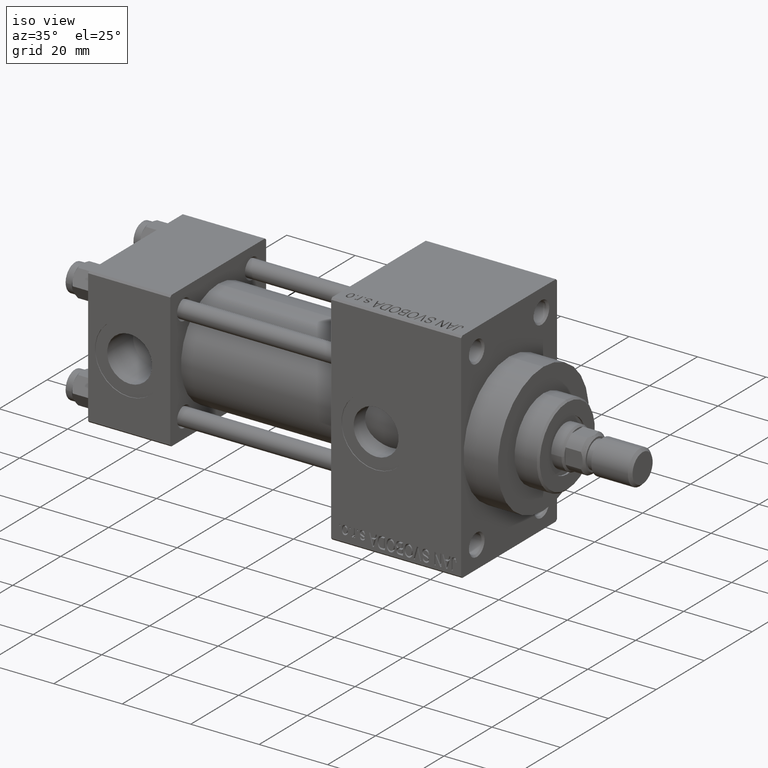
[diagram: clean part render]
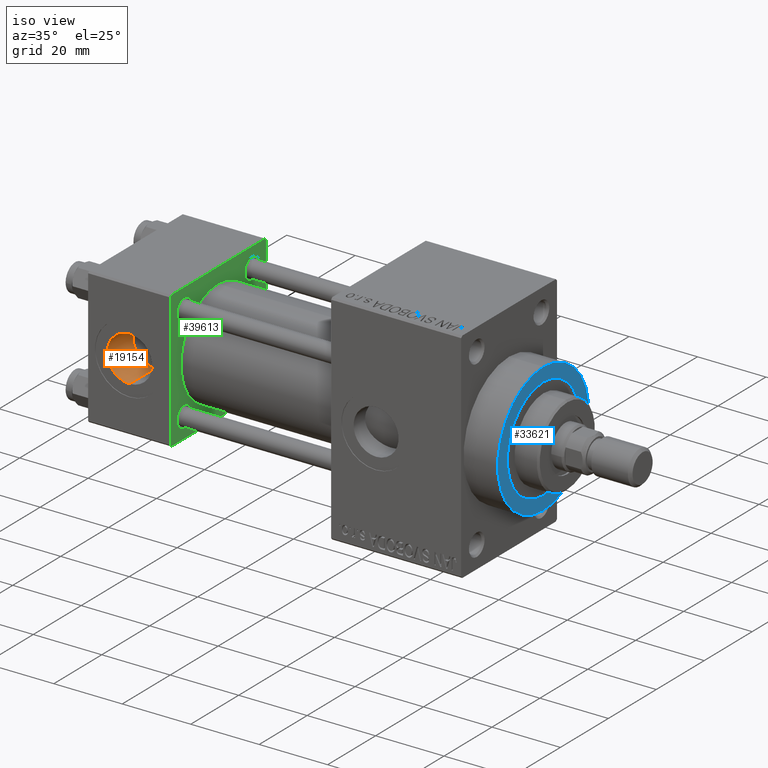
[diagram: same view with three faces highlighted in distinct colors, each labeled with its STEP entity id]
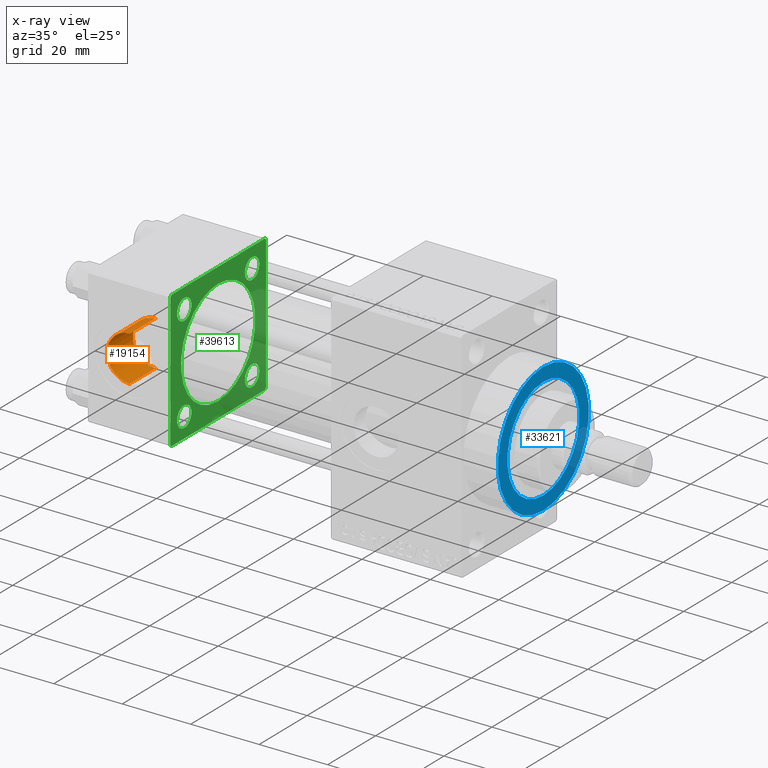
[diagram: x-ray of the same camera — body ghosted, the three highlighted faces saturated]
A machine part, iso view with three faces highlighted in distinct colors.
The next image is the same camera in x-ray (body ghosted, the three faces saturated) — at least one of them is partly hidden behind the body in this view.
Their STEP definitions:

[orange] entity #19154 — the highlighted cylindrical surface (edge-blend (fillet) strip) has radius 6.58 mm, axis along (-0, -1, -0).
#1266 = ORIENTED_EDGE ( 'NONE', *, *, #17828, .T. ) ;
#1425 = DIRECTION ( 'NONE',  ( 0.000000000000000000, -1.000000000000000000, -8.673617379884036705E-17 ) ) ;
#1497 = LINE ( 'NONE', #47294, #28356 ) ;
#2727 = VECTOR ( 'NONE', #11012, 1000.000000000000000 ) ;
#6541 = CARTESIAN_POINT ( 'NONE',  ( 12.00000000000000000, -19.80000000000000426, 6.579999999999996518 ) ) ;
#7501 = LINE ( 'NONE', #10511, #2727 ) ;
#8040 = CARTESIAN_POINT ( 'NONE',  ( 12.00000000000000000, -9.039999999999977831, -7.840950111415154262E-16 ) ) ;
#8304 = ORIENTED_EDGE ( 'NONE', *, *, #22307, .T. ) ;
#8430 = DIRECTION ( 'NONE',  ( -0.000000000000000000, -1.000000000000000000, -8.673617379884036705E-17 ) ) ;
#9727 = DIRECTION ( 'NONE',  ( -0.000000000000000000, -1.000000000000000000, -8.673617379884036705E-17 ) ) ;
#10511 = CARTESIAN_POINT ( 'NONE',  ( 12.00000000000000000, -9.100000000000004974, 6.579999999999997407 ) ) ;
#11012 = DIRECTION ( 'NONE',  ( -0.000000000000000000, -1.000000000000000000, -8.673617379884036705E-17 ) ) ;
#12991 = CARTESIAN_POINT ( 'NONE',  ( 12.00000000000000000, -9.039999999999977831, -6.579999999999999183 ) ) ;
#13424 = DIRECTION ( 'NONE',  ( 0.000000000000000000, 0.000000000000000000, -1.000000000000000000 ) ) ;
#14062 = CIRCLE ( 'NONE', #26874, 6.579999999999998295 ) ;
#14281 = CIRCLE ( 'NONE', #19906, 6.579999999999998295 ) ;
#15062 = DIRECTION ( 'NONE',  ( 0.000000000000000000, 0.000000000000000000, -1.000000000000000000 ) ) ;
#17828 = EDGE_CURVE ( 'NONE', #25346, #46024, #7501, .T. ) ;
#19154 = ADVANCED_FACE ( 'NONE', ( #19462 ), #34747, .F. ) ;
#19462 = FACE_OUTER_BOUND ( 'NONE', #28542, .T. ) ;
#19906 = AXIS2_PLACEMENT_3D ( 'NONE', #8040, #49080, #15062 ) ;
#22307 = EDGE_CURVE ( 'NONE', #46024, #30160, #14062, .T. ) ;
#23711 = DIRECTION ( 'NONE',  ( 0.000000000000000000, 0.000000000000000000, -1.000000000000000000 ) ) ;
#24936 = CARTESIAN_POINT ( 'NONE',  ( 12.00000000000000000, -19.80000000000000426, -1.717376241217039812E-15 ) ) ;
#25346 = VERTEX_POINT ( 'NONE', #29396 ) ;
#25741 = ORIENTED_EDGE ( 'NONE', *, *, #31231, .T. ) ;
#26086 = ORIENTED_EDGE ( 'NONE', *, *, #39344, .F. ) ;
#26874 = AXIS2_PLACEMENT_3D ( 'NONE', #24936, #1425, #13424 ) ;
#28356 = VECTOR ( 'NONE', #9727, 1000.000000000000000 ) ;
#28542 = EDGE_LOOP ( 'NONE', ( #25741, #1266, #8304, #26086 ) ) ;
#29396 = CARTESIAN_POINT ( 'NONE',  ( 12.00000000000000000, -9.039999999999977831, 6.579999999999997407 ) ) ;
#29976 = AXIS2_PLACEMENT_3D ( 'NONE', #35002, #8430, #23711 ) ;
#30160 = VERTEX_POINT ( 'NONE', #33651 ) ;
#31231 = EDGE_CURVE ( 'NONE', #38616, #25346, #14281, .T. ) ;
#33651 = CARTESIAN_POINT ( 'NONE',  ( 12.00000000000000000, -19.80000000000000426, -6.580000000000000071 ) ) ;
#34747 = CYLINDRICAL_SURFACE ( 'NONE', #29976, 6.579999999999998295 ) ;
#35002 = CARTESIAN_POINT ( 'NONE',  ( 12.00000000000000000, -9.100000000000004974, -7.892991815694479182E-16 ) ) ;
#38616 = VERTEX_POINT ( 'NONE', #12991 ) ;
#39344 = EDGE_CURVE ( 'NONE', #38616, #30160, #1497, .T. ) ;
#46024 = VERTEX_POINT ( 'NONE', #6541 ) ;
#47294 = CARTESIAN_POINT ( 'NONE',  ( 12.00000000000000000, -9.100000000000004974, -6.579999999999999183 ) ) ;
#49080 = DIRECTION ( 'NONE',  ( -0.000000000000000000, 1.000000000000000000, 8.673617379884039170E-17 ) ) ;

[blue] entity #33621 — the highlighted planar face has unit normal (1, 0, 0).
#615 = EDGE_CURVE ( 'NONE', #27229, #33568, #41984, .T. ) ;
#1290 = VERTEX_POINT ( 'NONE', #10199 ) ;
#2041 = CIRCLE ( 'NONE', #30039, 19.00000000000000000 ) ;
#2047 = EDGE_LOOP ( 'NONE', ( #28610, #39702 ) ) ;
#2057 = ORIENTED_EDGE ( 'NONE', *, *, #2408, .T. ) ;
#2408 = EDGE_CURVE ( 'NONE', #28490, #1290, #2041, .T. ) ;
#3460 = CIRCLE ( 'NONE', #8254, 19.00000000000000000 ) ;
#4193 = CARTESIAN_POINT ( 'NONE',  ( 119.0000000000000142, 1.836970198721029589E-15, 15.00000000000000000 ) ) ;
#4612 = ORIENTED_EDGE ( 'NONE', *, *, #12111, .T. ) ;
#8254 = AXIS2_PLACEMENT_3D ( 'NONE', #43333, #31586, #23830 ) ;
#10199 = CARTESIAN_POINT ( 'NONE',  ( 119.0000000000000142, 2.326828918379970970E-15, -19.00000000000000000 ) ) ;
#12111 = EDGE_CURVE ( 'NONE', #1290, #28490, #3460, .T. ) ;
#13940 = AXIS2_PLACEMENT_3D ( 'NONE', #30615, #45627, #45374 ) ;
#14711 = DIRECTION ( 'NONE',  ( 1.000000000000000000, 0.000000000000000000, 0.000000000000000000 ) ) ;
#15223 = FACE_BOUND ( 'NONE', #2047, .T. ) ;
#15465 = CARTESIAN_POINT ( 'NONE',  ( 119.0000000000000142, 0.000000000000000000, 0.000000000000000000 ) ) ;
#20385 = AXIS2_PLACEMENT_3D ( 'NONE', #15465, #42502, #31480 ) ;
#22365 = AXIS2_PLACEMENT_3D ( 'NONE', #46252, #38272, #38516 ) ;
#23472 = PLANE ( 'NONE',  #22365 ) ;
#23830 = DIRECTION ( 'NONE',  ( 0.000000000000000000, 0.000000000000000000, -1.000000000000000000 ) ) ;
#27229 = VERTEX_POINT ( 'NONE', #45878 ) ;
#27352 = EDGE_LOOP ( 'NONE', ( #2057, #4612 ) ) ;
#28490 = VERTEX_POINT ( 'NONE', #32293 ) ;
#28610 = ORIENTED_EDGE ( 'NONE', *, *, #615, .F. ) ;
#29143 = CIRCLE ( 'NONE', #13940, 15.00000000000000000 ) ;
#30039 = AXIS2_PLACEMENT_3D ( 'NONE', #45744, #14711, #45242 ) ;
#30615 = CARTESIAN_POINT ( 'NONE',  ( 119.0000000000000142, 0.000000000000000000, 0.000000000000000000 ) ) ;
#31480 = DIRECTION ( 'NONE',  ( 0.000000000000000000, 0.000000000000000000, -1.000000000000000000 ) ) ;
#31586 = DIRECTION ( 'NONE',  ( 1.000000000000000000, 0.000000000000000000, 0.000000000000000000 ) ) ;
#32293 = CARTESIAN_POINT ( 'NONE',  ( 119.0000000000000142, 0.000000000000000000, 19.00000000000000000 ) ) ;
#33568 = VERTEX_POINT ( 'NONE', #4193 ) ;
#33621 = ADVANCED_FACE ( 'NONE', ( #15223, #45507 ), #23472, .T. ) ;
#37932 = EDGE_CURVE ( 'NONE', #33568, #27229, #29143, .T. ) ;
#38272 = DIRECTION ( 'NONE',  ( 1.000000000000000000, 0.000000000000000000, 0.000000000000000000 ) ) ;
#38516 = DIRECTION ( 'NONE',  ( 0.000000000000000000, 0.000000000000000000, -1.000000000000000000 ) ) ;
#39702 = ORIENTED_EDGE ( 'NONE', *, *, #37932, .F. ) ;
#41984 = CIRCLE ( 'NONE', #20385, 15.00000000000000000 ) ;
#42502 = DIRECTION ( 'NONE',  ( 1.000000000000000000, 0.000000000000000000, 0.000000000000000000 ) ) ;
#43333 = CARTESIAN_POINT ( 'NONE',  ( 119.0000000000000142, 0.000000000000000000, 0.000000000000000000 ) ) ;
#45242 = DIRECTION ( 'NONE',  ( 0.000000000000000000, 0.000000000000000000, -1.000000000000000000 ) ) ;
#45374 = DIRECTION ( 'NONE',  ( 0.000000000000000000, 0.000000000000000000, -1.000000000000000000 ) ) ;
#45507 = FACE_OUTER_BOUND ( 'NONE', #27352, .T. ) ;
#45627 = DIRECTION ( 'NONE',  ( 1.000000000000000000, 0.000000000000000000, 0.000000000000000000 ) ) ;
#45744 = CARTESIAN_POINT ( 'NONE',  ( 119.0000000000000142, 0.000000000000000000, 0.000000000000000000 ) ) ;
#45878 = CARTESIAN_POINT ( 'NONE',  ( 119.0000000000000142, 0.000000000000000000, -15.00000000000000000 ) ) ;
#46252 = CARTESIAN_POINT ( 'NONE',  ( 119.0000000000000142, 0.000000000000000000, 0.000000000000000000 ) ) ;

[green] entity #39613 — the highlighted planar face has unit normal (-1, 0, 0).
#716 = FACE_OUTER_BOUND ( 'NONE', #23642, .T. ) ;
#770 = CARTESIAN_POINT ( 'NONE',  ( 24.00000000000000000, 14.14999999999999858, 14.15000000000000036 ) ) ;
#976 = DIRECTION ( 'NONE',  ( 0.000000000000000000, 0.000000000000000000, 1.000000000000000000 ) ) ;
#1070 = DIRECTION ( 'NONE',  ( 0.000000000000000000, 0.000000000000000000, 1.000000000000000000 ) ) ;
#2486 = EDGE_CURVE ( 'NONE', #3492, #42913, #37769, .T. ) ;
#2704 = CARTESIAN_POINT ( 'NONE',  ( 24.00000000000000000, -2.602085213965210642E-15, 15.50000000000000000 ) ) ;
#3441 = CARTESIAN_POINT ( 'NONE',  ( 24.00000000000000000, -20.00000000000000355, 19.99999999999998934 ) ) ;
#3492 = VERTEX_POINT ( 'NONE', #7703 ) ;
#3769 = CARTESIAN_POINT ( 'NONE',  ( 24.00000000000000000, -7.038826752868131828E-16, -15.50000000000000000 ) ) ;
#4513 = CARTESIAN_POINT ( 'NONE',  ( 24.00000000000000000, -14.14999999999999503, 14.15000000000000391 ) ) ;
#4683 = CIRCLE ( 'NONE', #37459, 15.50000000000000000 ) ;
#4694 = CARTESIAN_POINT ( 'NONE',  ( 24.00000000000000000, 20.00000000000000000, 19.49999999999999289 ) ) ;
#4881 = CIRCLE ( 'NONE', #30482, 2.999999999999945377 ) ;
#5170 = AXIS2_PLACEMENT_3D ( 'NONE', #20478, #42781, #976 ) ;
#5493 = DIRECTION ( 'NONE',  ( -1.000000000000000000, -0.000000000000000000, -0.000000000000000000 ) ) ;
#5703 = VERTEX_POINT ( 'NONE', #25798 ) ;
#5707 = EDGE_CURVE ( 'NONE', #33747, #3492, #6757, .T. ) ;
#5746 = LINE ( 'NONE', #44529, #40434 ) ;
#5949 = ORIENTED_EDGE ( 'NONE', *, *, #23494, .F. ) ;
#6216 = DIRECTION ( 'NONE',  ( 0.000000000000000000, 0.7071067811865401342, -0.7071067811865549002 ) ) ;
#6614 = EDGE_LOOP ( 'NONE', ( #9682, #5949 ) ) ;
#6662 = CARTESIAN_POINT ( 'NONE',  ( 24.00000000000000000, 20.00000000000000000, 20.00000000000000000 ) ) ;
#6757 = LINE ( 'NONE', #22041, #42953 ) ;
#6817 = CARTESIAN_POINT ( 'NONE',  ( 24.00000000000000000, 20.00000000000000000, -19.50000000000002132 ) ) ;
#7099 = DIRECTION ( 'NONE',  ( 0.000000000000000000, 0.000000000000000000, 1.000000000000000000 ) ) ;
#7170 = LINE ( 'NONE', #6662, #24678 ) ;
#7612 = CARTESIAN_POINT ( 'NONE',  ( 24.00000000000000000, -19.50000000000000711, -20.00000000000000000 ) ) ;
#7703 = CARTESIAN_POINT ( 'NONE',  ( 24.00000000000000000, -20.00000000000000355, 19.49999999999998224 ) ) ;
#7736 = AXIS2_PLACEMENT_3D ( 'NONE', #41531, #38286, #18986 ) ;
#7750 = VERTEX_POINT ( 'NONE', #7612 ) ;
#8212 = FACE_BOUND ( 'NONE', #44169, .T. ) ;
#8514 = VERTEX_POINT ( 'NONE', #40878 ) ;
#8929 = DIRECTION ( 'NONE',  ( -1.000000000000000000, -0.000000000000000000, -0.000000000000000000 ) ) ;
#9491 = CARTESIAN_POINT ( 'NONE',  ( 24.00000000000000000, 20.00000000000000000, 20.00000000000000000 ) ) ;
#9682 = ORIENTED_EDGE ( 'NONE', *, *, #27288, .F. ) ;
#10233 = AXIS2_PLACEMENT_3D ( 'NONE', #4513, #5493, #19793 ) ;
#10386 = VERTEX_POINT ( 'NONE', #46089 ) ;
#11110 = CARTESIAN_POINT ( 'NONE',  ( 24.00000000000000000, 14.14999999999999858, -14.15000000000000036 ) ) ;
#11774 = DIRECTION ( 'NONE',  ( -1.000000000000000000, -0.000000000000000000, -0.000000000000000000 ) ) ;
#12215 = CARTESIAN_POINT ( 'NONE',  ( 24.00000000000000000, 0.000000000000000000, 0.000000000000000000 ) ) ;
#12281 = CARTESIAN_POINT ( 'NONE',  ( 24.00000000000000000, 14.14999999999999858, -11.15000000000005365 ) ) ;
#12928 = CARTESIAN_POINT ( 'NONE',  ( 24.00000000000000000, -19.49999999999999289, 19.99999999999998934 ) ) ;
#13105 = EDGE_CURVE ( 'NONE', #29969, #15233, #22655, .T. ) ;
#13152 = VERTEX_POINT ( 'NONE', #4694 ) ;
#13203 = VERTEX_POINT ( 'NONE', #20693 ) ;
#14266 = ORIENTED_EDGE ( 'NONE', *, *, #44489, .T. ) ;
#14655 = ORIENTED_EDGE ( 'NONE', *, *, #38015, .T. ) ;
#14934 = AXIS2_PLACEMENT_3D ( 'NONE', #16571, #25043, #24560 ) ;
#14978 = LINE ( 'NONE', #30256, #17531 ) ;
#15233 = VERTEX_POINT ( 'NONE', #21934 ) ;
#15949 = CARTESIAN_POINT ( 'NONE',  ( 24.00000000000000000, -20.00000000000000000, -19.49999999999999645 ) ) ;
#16149 = EDGE_CURVE ( 'NONE', #5703, #29219, #25976, .T. ) ;
#16243 = ORIENTED_EDGE ( 'NONE', *, *, #26599, .T. ) ;
#16571 = CARTESIAN_POINT ( 'NONE',  ( 24.00000000000000000, -2.602085213965210642E-15, 0.000000000000000000 ) ) ;
#16707 = CARTESIAN_POINT ( 'NONE',  ( 24.00000000000000000, -14.14999999999999503, 14.15000000000000391 ) ) ;
#17531 = VECTOR ( 'NONE', #6216, 1000.000000000000000 ) ;
#18986 = DIRECTION ( 'NONE',  ( 0.000000000000000000, 0.000000000000000000, 1.000000000000000000 ) ) ;
#19121 = CIRCLE ( 'NONE', #28687, 2.999999999999945377 ) ;
#19337 = ORIENTED_EDGE ( 'NONE', *, *, #2486, .T. ) ;
#19737 = FACE_BOUND ( 'NONE', #29431, .T. ) ;
#19793 = DIRECTION ( 'NONE',  ( 0.000000000000000000, 0.000000000000000000, 1.000000000000000000 ) ) ;
#20444 = DIRECTION ( 'NONE',  ( 0.000000000000000000, 0.000000000000000000, 1.000000000000000000 ) ) ;
#20478 = CARTESIAN_POINT ( 'NONE',  ( 24.00000000000000000, -14.14999999999999503, -14.15000000000000391 ) ) ;
#20564 = AXIS2_PLACEMENT_3D ( 'NONE', #11110, #36915, #7099 ) ;
#20693 = CARTESIAN_POINT ( 'NONE',  ( 24.00000000000000000, 20.00000000000000000, -19.50000000000002132 ) ) ;
#20941 = EDGE_CURVE ( 'NONE', #8514, #34272, #26842, .T. ) ;
#21098 = DIRECTION ( 'NONE',  ( -1.000000000000000000, -0.000000000000000000, -0.000000000000000000 ) ) ;
#21492 = DIRECTION ( 'NONE',  ( 0.000000000000000000, -1.000000000000000000, 1.734723475976807094E-16 ) ) ;
#21934 = CARTESIAN_POINT ( 'NONE',  ( 24.00000000000000000, -14.14999999999999503, 11.15000000000002878 ) ) ;
#22041 = CARTESIAN_POINT ( 'NONE',  ( 24.00000000000000000, -20.00000000000000355, 19.49999999999998224 ) ) ;
#22105 = DIRECTION ( 'NONE',  ( -0.000000000000000000, 0.7071067811865524577, 0.7071067811865426878 ) ) ;
#22655 = CIRCLE ( 'NONE', #25863, 2.999999999999976463 ) ;
#22691 = DIRECTION ( 'NONE',  ( 0.000000000000000000, 0.000000000000000000, -1.000000000000000000 ) ) ;
#23280 = ORIENTED_EDGE ( 'NONE', *, *, #28518, .T. ) ;
#23494 = EDGE_CURVE ( 'NONE', #43750, #44059, #36522, .T. ) ;
#23642 = EDGE_LOOP ( 'NONE', ( #41659, #14655, #35447, #24972, #29789, #38324, #19337, #45469 ) ) ;
#23741 = FACE_BOUND ( 'NONE', #38933, .T. ) ;
#23857 = CARTESIAN_POINT ( 'NONE',  ( 24.00000000000000000, 14.14999999999999858, 11.15000000000005365 ) ) ;
#24531 = DIRECTION ( 'NONE',  ( -1.000000000000000000, -0.000000000000000000, -0.000000000000000000 ) ) ;
#24560 = DIRECTION ( 'NONE',  ( 0.000000000000000000, 0.000000000000000000, 1.000000000000000000 ) ) ;
#24678 = VECTOR ( 'NONE', #22691, 1000.000000000000000 ) ;
#24972 = ORIENTED_EDGE ( 'NONE', *, *, #41694, .T. ) ;
#25043 = DIRECTION ( 'NONE',  ( 1.000000000000000000, 0.000000000000000000, 0.000000000000000000 ) ) ;
#25744 = CARTESIAN_POINT ( 'NONE',  ( 24.00000000000000000, 20.00000000000000000, -20.00000000000000711 ) ) ;
#25798 = CARTESIAN_POINT ( 'NONE',  ( 24.00000000000000000, -14.14999999999999503, -17.14999999999998082 ) ) ;
#25863 = AXIS2_PLACEMENT_3D ( 'NONE', #16707, #8929, #20444 ) ;
#25976 = CIRCLE ( 'NONE', #5170, 2.999999999999976463 ) ;
#26390 = ORIENTED_EDGE ( 'NONE', *, *, #13105, .T. ) ;
#26599 = EDGE_CURVE ( 'NONE', #15233, #29969, #48578, .T. ) ;
#26842 = CIRCLE ( 'NONE', #29225, 2.999999999999945377 ) ;
#27288 = EDGE_CURVE ( 'NONE', #44059, #43750, #4683, .T. ) ;
#27489 = DIRECTION ( 'NONE',  ( -1.000000000000000000, 0.000000000000000000, -0.000000000000000000 ) ) ;
#27864 = CARTESIAN_POINT ( 'NONE',  ( 24.00000000000000000, -2.602085213965210642E-15, 0.000000000000000000 ) ) ;
#28332 = CARTESIAN_POINT ( 'NONE',  ( 24.00000000000000000, 19.50000000000000000, 20.00000000000000000 ) ) ;
#28518 = EDGE_CURVE ( 'NONE', #34272, #8514, #19121, .T. ) ;
#28687 = AXIS2_PLACEMENT_3D ( 'NONE', #46819, #24531, #35829 ) ;
#29219 = VERTEX_POINT ( 'NONE', #40423 ) ;
#29225 = AXIS2_PLACEMENT_3D ( 'NONE', #770, #11774, #42328 ) ;
#29431 = EDGE_LOOP ( 'NONE', ( #23280, #31763 ) ) ;
#29491 = EDGE_CURVE ( 'NONE', #42913, #7750, #14978, .T. ) ;
#29530 = DIRECTION ( 'NONE',  ( 0.000000000000000000, -0.7071067811865425767, 0.7071067811865525687 ) ) ;
#29540 = EDGE_CURVE ( 'NONE', #36672, #7750, #37777, .T. ) ;
#29789 = ORIENTED_EDGE ( 'NONE', *, *, #46725, .T. ) ;
#29924 = VECTOR ( 'NONE', #22105, 1000.000000000000000 ) ;
#29969 = VERTEX_POINT ( 'NONE', #31189 ) ;
#30256 = CARTESIAN_POINT ( 'NONE',  ( 24.00000000000000000, -19.50000000000000711, -20.00000000000000000 ) ) ;
#30482 = AXIS2_PLACEMENT_3D ( 'NONE', #40144, #21098, #36394 ) ;
#31189 = CARTESIAN_POINT ( 'NONE',  ( 24.00000000000000000, -14.14999999999999503, 17.14999999999998082 ) ) ;
#31258 = PLANE ( 'NONE',  #35603 ) ;
#31332 = VERTEX_POINT ( 'NONE', #12281 ) ;
#31501 = EDGE_CURVE ( 'NONE', #13152, #13203, #7170, .T. ) ;
#31763 = ORIENTED_EDGE ( 'NONE', *, *, #20941, .T. ) ;
#32731 = VECTOR ( 'NONE', #21492, 1000.000000000000000 ) ;
#33350 = EDGE_LOOP ( 'NONE', ( #14266, #40565 ) ) ;
#33747 = VERTEX_POINT ( 'NONE', #12928 ) ;
#34272 = VERTEX_POINT ( 'NONE', #23857 ) ;
#35027 = FACE_BOUND ( 'NONE', #6614, .T. ) ;
#35394 = DIRECTION ( 'NONE',  ( 1.000000000000000000, 0.000000000000000000, 0.000000000000000000 ) ) ;
#35447 = ORIENTED_EDGE ( 'NONE', *, *, #31501, .F. ) ;
#35603 = AXIS2_PLACEMENT_3D ( 'NONE', #12215, #27489, #46512 ) ;
#35829 = DIRECTION ( 'NONE',  ( 0.000000000000000000, 0.000000000000000000, 1.000000000000000000 ) ) ;
#36394 = DIRECTION ( 'NONE',  ( 0.000000000000000000, 0.000000000000000000, 1.000000000000000000 ) ) ;
#36522 = CIRCLE ( 'NONE', #14934, 15.50000000000000000 ) ;
#36599 = EDGE_CURVE ( 'NONE', #31332, #10386, #4881, .T. ) ;
#36672 = VERTEX_POINT ( 'NONE', #49118 ) ;
#36915 = DIRECTION ( 'NONE',  ( -1.000000000000000000, -0.000000000000000000, -0.000000000000000000 ) ) ;
#37333 = DIRECTION ( 'NONE',  ( -0.000000000000000000, -0.7071067811865500152, -0.7071067811865451302 ) ) ;
#37459 = AXIS2_PLACEMENT_3D ( 'NONE', #27864, #35394, #1070 ) ;
#37769 = LINE ( 'NONE', #3441, #49221 ) ;
#37777 = LINE ( 'NONE', #25744, #32731 ) ;
#38015 = EDGE_CURVE ( 'NONE', #36672, #13203, #48635, .T. ) ;
#38140 = CIRCLE ( 'NONE', #7736, 2.999999999999976463 ) ;
#38286 = DIRECTION ( 'NONE',  ( -1.000000000000000000, -0.000000000000000000, -0.000000000000000000 ) ) ;
#38324 = ORIENTED_EDGE ( 'NONE', *, *, #5707, .T. ) ;
#38772 = FACE_BOUND ( 'NONE', #33350, .T. ) ;
#38933 = EDGE_LOOP ( 'NONE', ( #16243, #26390 ) ) ;
#39320 = DIRECTION ( 'NONE',  ( 0.000000000000000000, -1.000000000000000000, -2.602085213965210149E-16 ) ) ;
#39613 = ADVANCED_FACE ( 'NONE', ( #8212, #38772, #23741, #19737, #35027, #716 ), #31258, .F. ) ;
#40144 = CARTESIAN_POINT ( 'NONE',  ( 24.00000000000000000, 14.14999999999999858, -14.15000000000000036 ) ) ;
#40423 = CARTESIAN_POINT ( 'NONE',  ( 24.00000000000000000, -14.14999999999999503, -11.15000000000002878 ) ) ;
#40434 = VECTOR ( 'NONE', #29530, 999.9999999999998863 ) ;
#40544 = CIRCLE ( 'NONE', #20564, 2.999999999999945377 ) ;
#40565 = ORIENTED_EDGE ( 'NONE', *, *, #36599, .T. ) ;
#40878 = CARTESIAN_POINT ( 'NONE',  ( 24.00000000000000000, 14.14999999999999858, 17.14999999999994884 ) ) ;
#41531 = CARTESIAN_POINT ( 'NONE',  ( 24.00000000000000000, -14.14999999999999503, -14.15000000000000391 ) ) ;
#41659 = ORIENTED_EDGE ( 'NONE', *, *, #29540, .F. ) ;
#41694 = EDGE_CURVE ( 'NONE', #13152, #43572, #5746, .T. ) ;
#42328 = DIRECTION ( 'NONE',  ( 0.000000000000000000, 0.000000000000000000, 1.000000000000000000 ) ) ;
#42781 = DIRECTION ( 'NONE',  ( -1.000000000000000000, -0.000000000000000000, -0.000000000000000000 ) ) ;
#42913 = VERTEX_POINT ( 'NONE', #15949 ) ;
#42953 = VECTOR ( 'NONE', #37333, 1000.000000000000114 ) ;
#43572 = VERTEX_POINT ( 'NONE', #28332 ) ;
#43750 = VERTEX_POINT ( 'NONE', #3769 ) ;
#43785 = LINE ( 'NONE', #9491, #48487 ) ;
#43803 = ORIENTED_EDGE ( 'NONE', *, *, #44093, .T. ) ;
#44059 = VERTEX_POINT ( 'NONE', #2704 ) ;
#44093 = EDGE_CURVE ( 'NONE', #29219, #5703, #38140, .T. ) ;
#44169 = EDGE_LOOP ( 'NONE', ( #49025, #43803 ) ) ;
#44489 = EDGE_CURVE ( 'NONE', #10386, #31332, #40544, .T. ) ;
#44529 = CARTESIAN_POINT ( 'NONE',  ( 24.00000000000000000, 19.50000000000000000, 20.00000000000000000 ) ) ;
#45469 = ORIENTED_EDGE ( 'NONE', *, *, #29491, .T. ) ;
#46089 = CARTESIAN_POINT ( 'NONE',  ( 24.00000000000000000, 14.14999999999999858, -17.14999999999994884 ) ) ;
#46247 = DIRECTION ( 'NONE',  ( 0.000000000000000000, 8.673617379884036705E-17, -1.000000000000000000 ) ) ;
#46512 = DIRECTION ( 'NONE',  ( -0.000000000000000000, 0.000000000000000000, 1.000000000000000000 ) ) ;
#46725 = EDGE_CURVE ( 'NONE', #43572, #33747, #43785, .T. ) ;
#46819 = CARTESIAN_POINT ( 'NONE',  ( 24.00000000000000000, 14.14999999999999858, 14.15000000000000036 ) ) ;
#48487 = VECTOR ( 'NONE', #39320, 1000.000000000000000 ) ;
#48578 = CIRCLE ( 'NONE', #10233, 2.999999999999976463 ) ;
#48635 = LINE ( 'NONE', #6817, #29924 ) ;
#49025 = ORIENTED_EDGE ( 'NONE', *, *, #16149, .T. ) ;
#49118 = CARTESIAN_POINT ( 'NONE',  ( 24.00000000000000000, 19.50000000000000711, -20.00000000000000711 ) ) ;
#49221 = VECTOR ( 'NONE', #46247, 1000.000000000000000 ) ;